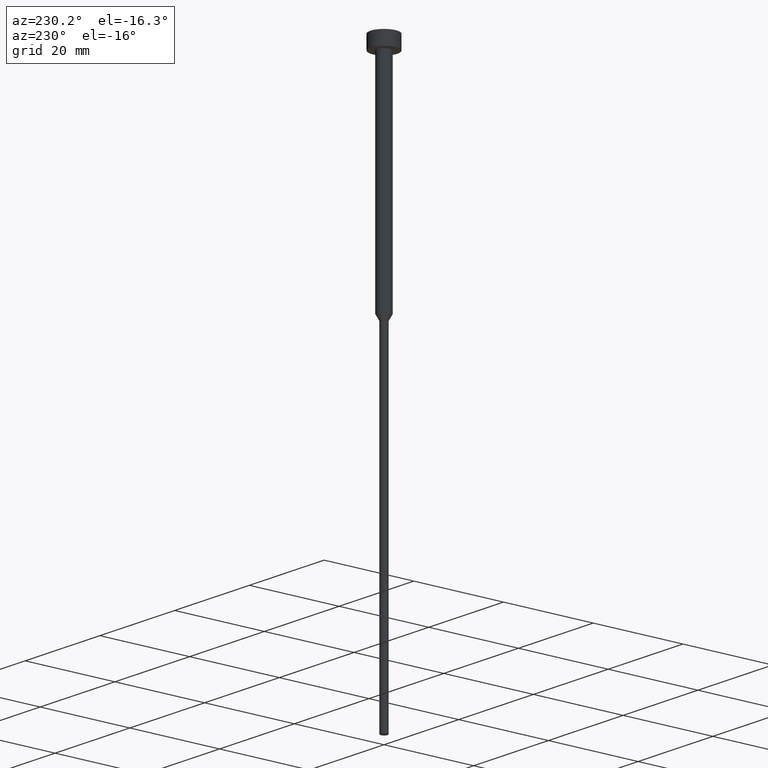
[diagram: clean part render]
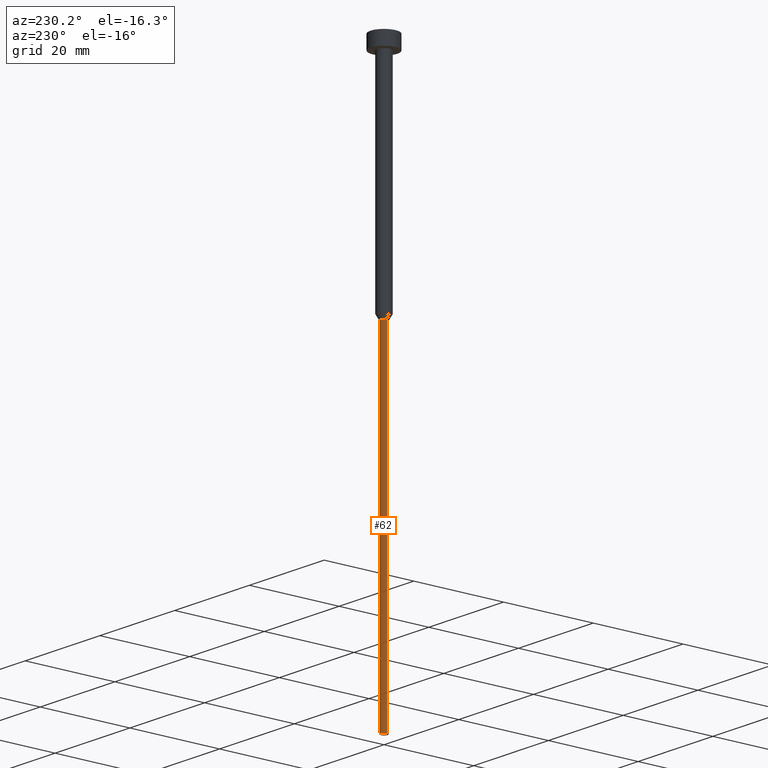
[diagram: same view with one face highlighted and labeled with its STEP entity id]
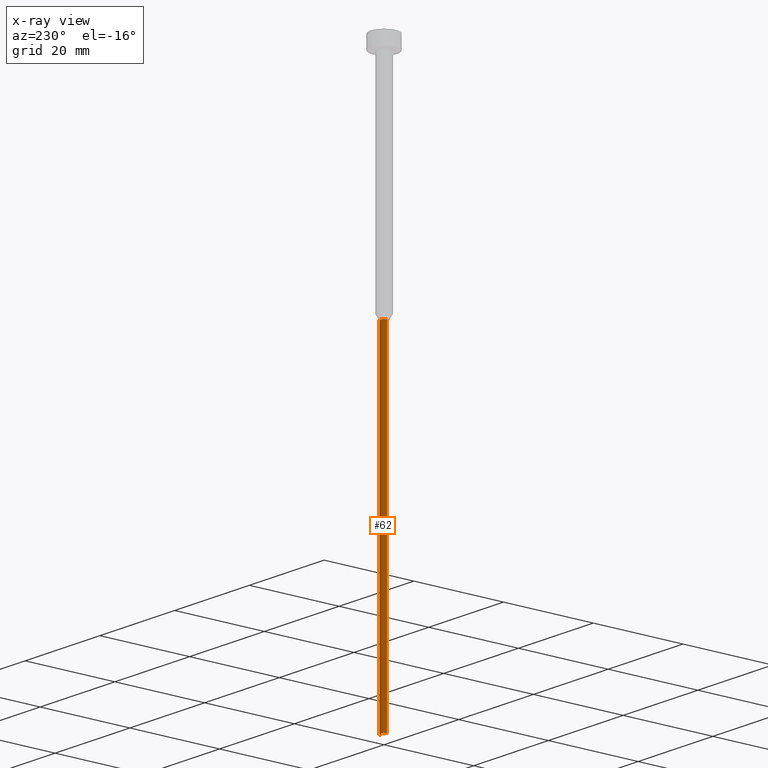
[diagram: x-ray of the same camera — body ghosted, the highlighted face saturated]
A machine part, auxiliary view. The second image highlights one B-rep face of the part: STEP entity #62.
The next image is the same camera in x-ray: the body ghosted, the highlighted face saturated — about 0% of this face is hidden behind the body in this view.
In plain terms, the highlighted cylindrical surface (edge-blend (fillet) strip) has radius 0.8 mm, axis along (-0, -0, 1).
Its self-contained STEP definition (entity closure, byte-faithful):
#6 = CARTESIAN_POINT ( 'NONE',  ( 0.000000000000000000, 0.000000000000000000, 0.000000000000000000 ) ) ;
#11 = ORIENTED_EDGE ( 'NONE', *, *, #291, .T. ) ;
#27 = VERTEX_POINT ( 'NONE', #305 ) ;
#33 = FACE_OUTER_BOUND ( 'NONE', #337, .T. ) ;
#34 = ORIENTED_EDGE ( 'NONE', *, *, #231, .F. ) ;
#54 = CIRCLE ( 'NONE', #244, 0.7999999999999999334 ) ;
#55 = DIRECTION ( 'NONE',  ( -0.000000000000000000, -0.000000000000000000, 1.000000000000000000 ) ) ;
#62 = ADVANCED_FACE ( 'NONE', ( #33 ), #167, .T. ) ;
#65 = EDGE_CURVE ( 'NONE', #282, #27, #350, .T. ) ;
#67 = VECTOR ( 'NONE', #323, 1000.000000000000000 ) ;
#75 = DIRECTION ( 'NONE',  ( -0.000000000000000000, -0.000000000000000000, 1.000000000000000000 ) ) ;
#80 = CIRCLE ( 'NONE', #289, 0.8000000000000001554 ) ;
#103 = CARTESIAN_POINT ( 'NONE',  ( 0.7999999999999999334, 0.000000000000000000, -125.0000000000000000 ) ) ;
#105 = DIRECTION ( 'NONE',  ( 1.000000000000000000, 0.000000000000000000, 0.000000000000000000 ) ) ;
#119 = VERTEX_POINT ( 'NONE', #103 ) ;
#126 = CARTESIAN_POINT ( 'NONE',  ( -0.8000000000000000444, 9.797174393178826150E-17, 0.000000000000000000 ) ) ;
#143 = DIRECTION ( 'NONE',  ( 1.000000000000000000, 0.000000000000000000, 0.000000000000000000 ) ) ;
#167 = CYLINDRICAL_SURFACE ( 'NONE', #326, 0.8000000000000000444 ) ;
#174 = DIRECTION ( 'NONE',  ( -0.000000000000000000, -0.000000000000000000, 1.000000000000000000 ) ) ;
#186 = DIRECTION ( 'NONE',  ( 1.000000000000000000, 0.000000000000000000, 0.000000000000000000 ) ) ;
#193 = CARTESIAN_POINT ( 'NONE',  ( -0.7999999999999999334, 9.797174393178826150E-17, -125.0000000000000000 ) ) ;
#196 = ORIENTED_EDGE ( 'NONE', *, *, #280, .F. ) ;
#198 = VERTEX_POINT ( 'NONE', #348 ) ;
#211 = CARTESIAN_POINT ( 'NONE',  ( 0.000000000000000000, 0.000000000000000000, -51.21243556529821461 ) ) ;
#218 = CARTESIAN_POINT ( 'NONE',  ( 0.8000000000000000444, 0.000000000000000000, 0.000000000000000000 ) ) ;
#229 = ORIENTED_EDGE ( 'NONE', *, *, #65, .T. ) ;
#231 = EDGE_CURVE ( 'NONE', #198, #27, #80, .T. ) ;
#241 = LINE ( 'NONE', #218, #274 ) ;
#244 = AXIS2_PLACEMENT_3D ( 'NONE', #273, #55, #105 ) ;
#273 = CARTESIAN_POINT ( 'NONE',  ( 0.000000000000000000, 0.000000000000000000, -125.0000000000000000 ) ) ;
#274 = VECTOR ( 'NONE', #275, 1000.000000000000000 ) ;
#275 = DIRECTION ( 'NONE',  ( -0.000000000000000000, -0.000000000000000000, 1.000000000000000000 ) ) ;
#280 = EDGE_CURVE ( 'NONE', #119, #198, #241, .T. ) ;
#282 = VERTEX_POINT ( 'NONE', #193 ) ;
#289 = AXIS2_PLACEMENT_3D ( 'NONE', #211, #75, #186 ) ;
#291 = EDGE_CURVE ( 'NONE', #119, #282, #54, .T. ) ;
#305 = CARTESIAN_POINT ( 'NONE',  ( -0.8000000000000002665, 9.797174393178828616E-17, -51.21243556529821461 ) ) ;
#323 = DIRECTION ( 'NONE',  ( -0.000000000000000000, -0.000000000000000000, 1.000000000000000000 ) ) ;
#326 = AXIS2_PLACEMENT_3D ( 'NONE', #6, #174, #143 ) ;
#337 = EDGE_LOOP ( 'NONE', ( #11, #229, #34, #196 ) ) ;
#348 = CARTESIAN_POINT ( 'NONE',  ( 0.8000000000000001554, 0.000000000000000000, -51.21243556529821461 ) ) ;
#350 = LINE ( 'NONE', #126, #67 ) ;